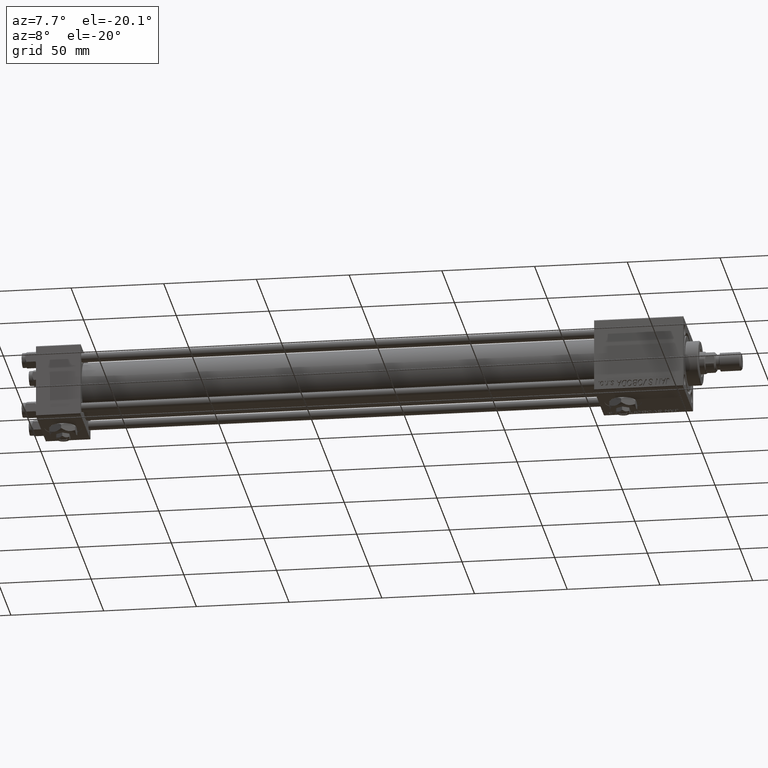
[diagram: clean part render]
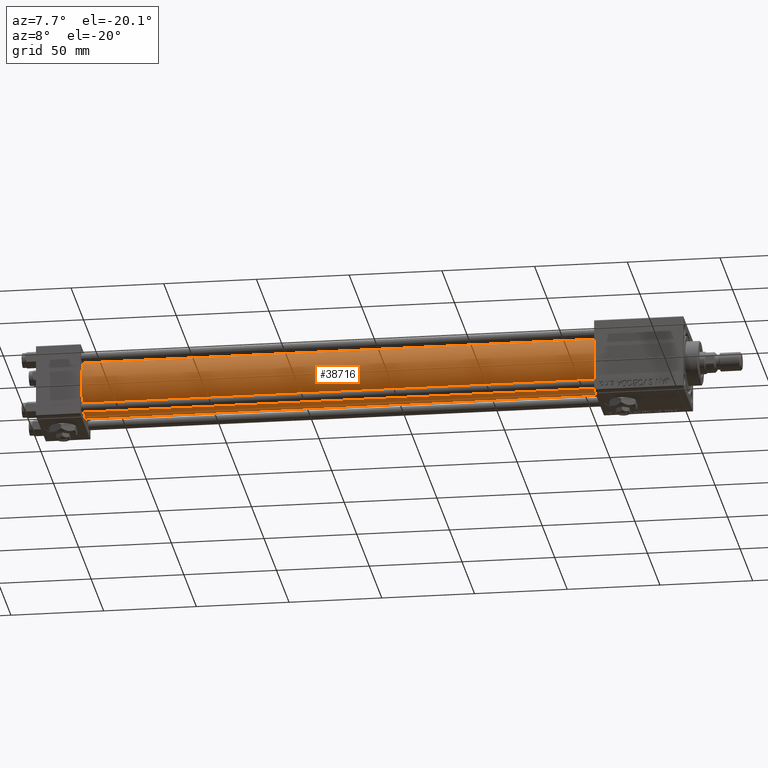
[diagram: same view with one face highlighted and labeled with its STEP entity id]
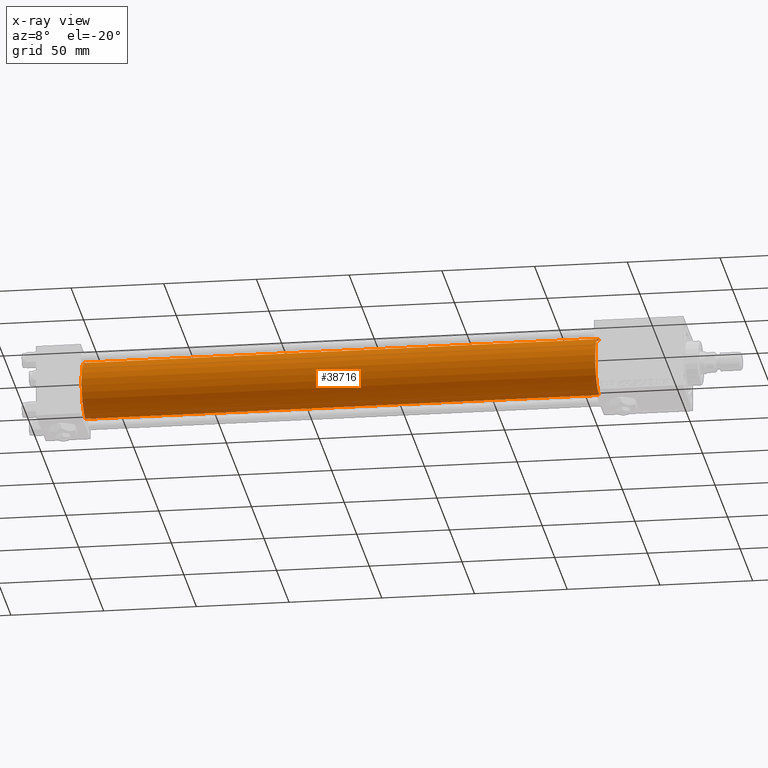
[diagram: x-ray of the same camera — body ghosted, the highlighted face saturated]
A machine part, auxiliary view. The second image highlights one B-rep face of the part: STEP entity #38716.
The next image is the same camera in x-ray: the body ghosted, the highlighted face saturated — about 0% of this face is hidden behind the body in this view.
In plain terms, the highlighted cylindrical surface (edge-blend (fillet) strip) has radius 15.5 mm, axis along (-1, -0, -0).
Its self-contained STEP definition (entity closure, byte-faithful):
#363 = CIRCLE ( 'NONE', #50502, 15.50000000000000000 ) ;
#923 = VERTEX_POINT ( 'NONE', #20032 ) ;
#1064 = VERTEX_POINT ( 'NONE', #50889 ) ;
#1249 = CARTESIAN_POINT ( 'NONE',  ( 24.00000000000002132, -7.038826752868131828E-16, -15.50000000000000000 ) ) ;
#1257 = DIRECTION ( 'NONE',  ( -1.000000000000000000, -0.000000000000000000, -0.000000000000000000 ) ) ;
#1429 = VECTOR ( 'NONE', #45544, 1000.000000000000000 ) ;
#6308 = EDGE_CURVE ( 'NONE', #923, #51803, #33430, .T. ) ;
#8831 = AXIS2_PLACEMENT_3D ( 'NONE', #44156, #10943, #23150 ) ;
#10000 = ORIENTED_EDGE ( 'NONE', *, *, #39819, .T. ) ;
#10943 = DIRECTION ( 'NONE',  ( -1.000000000000000000, -0.000000000000000000, -0.000000000000000000 ) ) ;
#11272 = EDGE_CURVE ( 'NONE', #923, #1064, #37615, .T. ) ;
#20032 = CARTESIAN_POINT ( 'NONE',  ( 301.0000000000000568, -2.602085213965210642E-15, 15.50000000000000000 ) ) ;
#20819 = DIRECTION ( 'NONE',  ( 1.000000000000000000, 0.000000000000000000, 0.000000000000000000 ) ) ;
#23150 = DIRECTION ( 'NONE',  ( 0.000000000000000000, 0.000000000000000000, 1.000000000000000000 ) ) ;
#23388 = ORIENTED_EDGE ( 'NONE', *, *, #11272, .F. ) ;
#27930 = FACE_OUTER_BOUND ( 'NONE', #37760, .T. ) ;
#29076 = DIRECTION ( 'NONE',  ( 0.000000000000000000, 0.000000000000000000, -1.000000000000000000 ) ) ;
#29301 = CARTESIAN_POINT ( 'NONE',  ( 301.0000000000000568, -7.038826752868131828E-16, -15.50000000000000000 ) ) ;
#29402 = VERTEX_POINT ( 'NONE', #1249 ) ;
#33161 = CARTESIAN_POINT ( 'NONE',  ( 301.0000000000000568, -2.602085213965210642E-15, 15.50000000000000000 ) ) ;
#33430 = LINE ( 'NONE', #33161, #34880 ) ;
#34797 = DIRECTION ( 'NONE',  ( 1.000000000000000000, 0.000000000000000000, 0.000000000000000000 ) ) ;
#34880 = VECTOR ( 'NONE', #1257, 1000.000000000000000 ) ;
#35062 = AXIS2_PLACEMENT_3D ( 'NONE', #49047, #20819, #29076 ) ;
#35594 = DIRECTION ( 'NONE',  ( 0.000000000000000000, 0.000000000000000000, 1.000000000000000000 ) ) ;
#37012 = LINE ( 'NONE', #29301, #1429 ) ;
#37615 = CIRCLE ( 'NONE', #35062, 15.50000000000000000 ) ;
#37760 = EDGE_LOOP ( 'NONE', ( #46034, #23388, #39899, #10000 ) ) ;
#38716 = ADVANCED_FACE ( 'NONE', ( #27930 ), #48168, .T. ) ;
#39324 = CARTESIAN_POINT ( 'NONE',  ( 24.00000000000002132, -2.602085213965210642E-15, 0.000000000000000000 ) ) ;
#39819 = EDGE_CURVE ( 'NONE', #51803, #29402, #363, .T. ) ;
#39899 = ORIENTED_EDGE ( 'NONE', *, *, #6308, .T. ) ;
#44156 = CARTESIAN_POINT ( 'NONE',  ( 301.0000000000000568, -2.602085213965210642E-15, 0.000000000000000000 ) ) ;
#45544 = DIRECTION ( 'NONE',  ( -1.000000000000000000, -0.000000000000000000, -0.000000000000000000 ) ) ;
#45688 = CARTESIAN_POINT ( 'NONE',  ( 24.00000000000002132, -2.602085213965210642E-15, 15.50000000000000000 ) ) ;
#46034 = ORIENTED_EDGE ( 'NONE', *, *, #48957, .F. ) ;
#48168 = CYLINDRICAL_SURFACE ( 'NONE', #8831, 15.50000000000000000 ) ;
#48957 = EDGE_CURVE ( 'NONE', #1064, #29402, #37012, .T. ) ;
#49047 = CARTESIAN_POINT ( 'NONE',  ( 301.0000000000000568, -2.602085213965210642E-15, 0.000000000000000000 ) ) ;
#50502 = AXIS2_PLACEMENT_3D ( 'NONE', #39324, #34797, #35594 ) ;
#50889 = CARTESIAN_POINT ( 'NONE',  ( 301.0000000000000568, -7.038826752868131828E-16, -15.50000000000000000 ) ) ;
#51803 = VERTEX_POINT ( 'NONE', #45688 ) ;